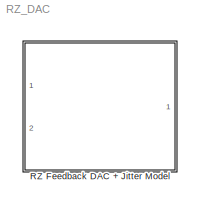
MODEL RZ_DAC
KIND model
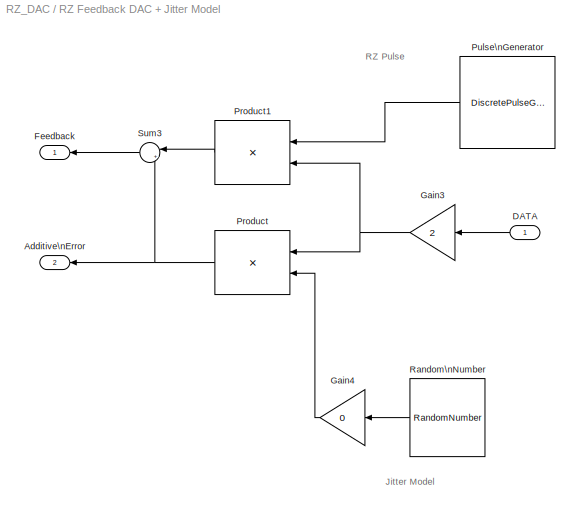
BLOCK [SubSystem] RZ Feedback DAC + Jitter Model
  FunctionWithSeparateData = off
  MaskHideContents = off
  MinAlgLoopOccurrences = off
  Opaque = off
  Ports = [1, 2]
  PropExecContextOutsideSubsystem = off
  RTWSystemCode = Auto
  RequestExecContextInheritance = off
  SID = 502
BLOCK [Outport] RZ Feedback DAC + Jitter Model/Additive\nError
  IconDisplay = Port number
  Port = 2
  SID = 506
BLOCK [Inport] RZ Feedback DAC + Jitter Model/DATA
  IconDisplay = Port number
  SID = 504
BLOCK [Outport] RZ Feedback DAC + Jitter Model/Feedback
  IconDisplay = Port number
  SID = 503
BLOCK [Gain] RZ Feedback DAC + Jitter Model/Gain3
  Gain = 2
  OutDataTypeStr = Inherit: Inherit via internal rule
  ParamDataTypeStr = Inherit: Inherit via internal rule
  SID = 452
  SampleTime = 1/Fs
  SaturateOnIntegerOverflow = off
BLOCK [Gain] RZ Feedback DAC + Jitter Model/Gain4
  Gain = 0
  OutDataTypeStr = Inherit: Inherit via internal rule
  ParamDataTypeStr = Inherit: Inherit via internal rule
  SID = 458
  SampleTime = 1/Fs
  SaturateOnIntegerOverflow = off
BLOCK [Product] RZ Feedback DAC + Jitter Model/Product
  InputSameDT = off
  OutDataTypeStr = Inherit: Inherit via internal rule
  Ports = [2, 1]
  SID = 491
  SampleTime = 1/Fs
  SaturateOnIntegerOverflow = off
BLOCK [Product] RZ Feedback DAC + Jitter Model/Product1
  InputSameDT = off
  OutDataTypeStr = Inherit: Inherit via internal rule
  Ports = [2, 1]
  SID = 496
  SampleTime = 1/Fs
  SaturateOnIntegerOverflow = off
BLOCK [DiscretePulseGenerator] RZ Feedback DAC + Jitter Model/Pulse\nGenerator
  Amplitude = 0.5
  Period = 1/Fs
  Ports = [0, 1]
  PulseType = Time based
  PulseWidth = 25
  SID = 495
  SampleTime = 1/Fs
BLOCK [RandomNumber] RZ Feedback DAC + Jitter Model/Random\nNumber
  Mean = 100e-12
  SID = 492
  SampleTime = 1/Fs
  Seed = 1
  Variance = 50e-9
BLOCK [Sum] RZ Feedback DAC + Jitter Model/Sum3
  IconShape = round
  InputSameDT = off
  Inputs = |++
  OutDataTypeStr = Inherit: Inherit via internal rule
  Ports = [2, 1]
  SID = 451
  SampleTime = 1/Fs
  SaturateOnIntegerOverflow = off
ANNOTATION RZ Feedback DAC + Jitter Model: Jitter Model
ANNOTATION RZ Feedback DAC + Jitter Model: RZ Pulse
LINE RZ Feedback DAC + Jitter Model/DATA:1 -> RZ Feedback DAC + Jitter Model/Gain3:1
NET RZ Feedback DAC + Jitter Model/Gain3:1 -> RZ Feedback DAC + Jitter Model/Product1:2, RZ Feedback DAC + Jitter Model/Product:1
LINE RZ Feedback DAC + Jitter Model/Gain4:1 -> RZ Feedback DAC + Jitter Model/Product:2
LINE RZ Feedback DAC + Jitter Model/Product1:1 -> RZ Feedback DAC + Jitter Model/Sum3:1
NET RZ Feedback DAC + Jitter Model/Product:1 -> RZ Feedback DAC + Jitter Model/Additive\nError:1, RZ Feedback DAC + Jitter Model/Sum3:2
LINE RZ Feedback DAC + Jitter Model/Pulse\nGenerator:1 -> RZ Feedback DAC + Jitter Model/Product1:1
LINE RZ Feedback DAC + Jitter Model/Random\nNumber:1 -> RZ Feedback DAC + Jitter Model/Gain4:1
LINE RZ Feedback DAC + Jitter Model/Sum3:1 -> RZ Feedback DAC + Jitter Model/Feedback:1
note: NET lines group one-source signal fan-out (src -> all destinations, sorted); 1:1 wires keep LINE
